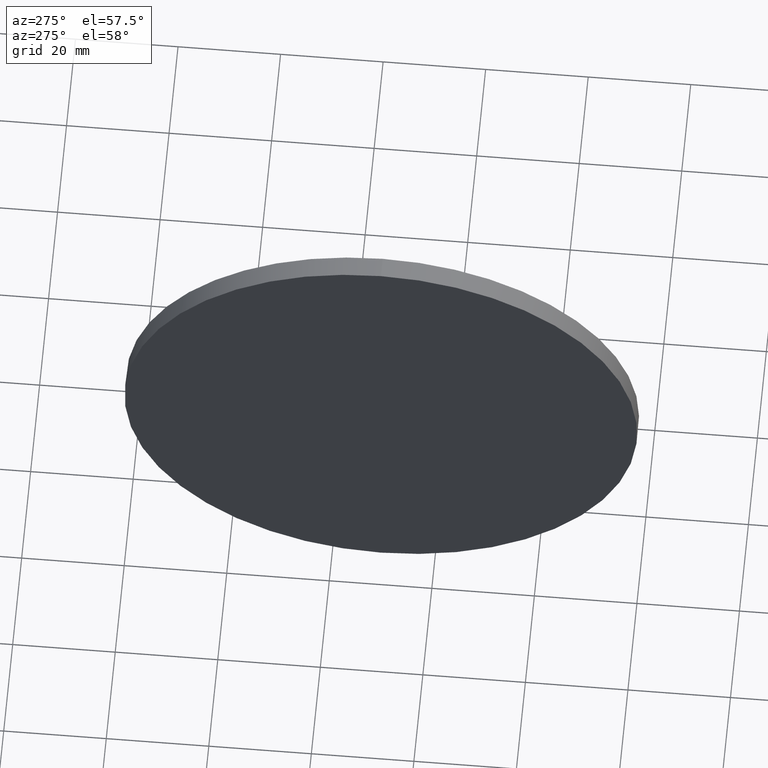
[diagram: clean part render]
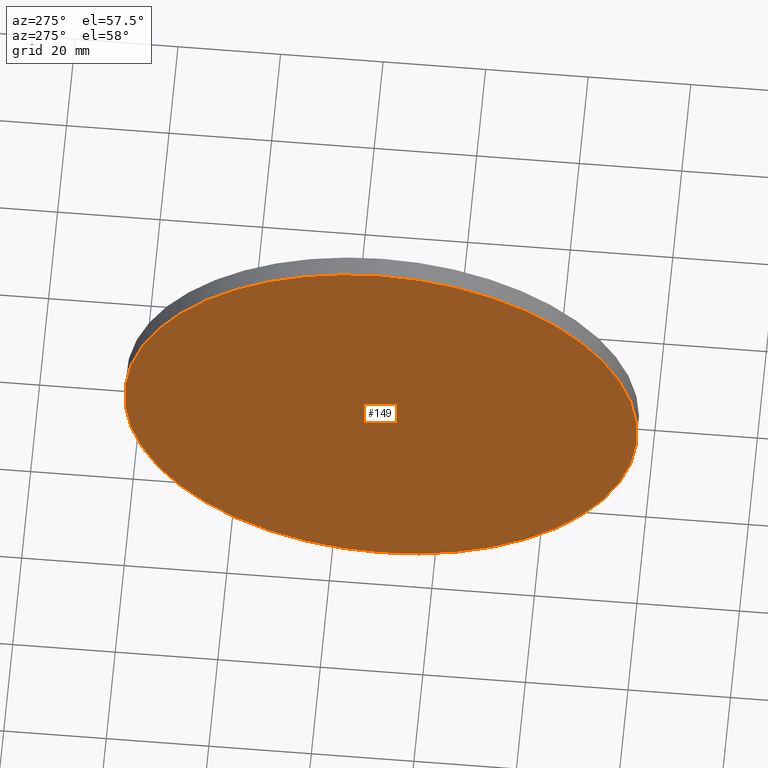
[diagram: same view with one face highlighted and labeled with its STEP entity id]
A machine part, auxiliary view. The second image highlights one B-rep face of the part: STEP entity #149.
In plain terms, the highlighted planar face has unit normal (1, 0, 0).
Its self-contained STEP definition (entity closure, byte-faithful):
#4 = DIRECTION ( 'NONE',  ( -1.000000000000000000, -0.0000000000000000000, -0.0000000000000000000 ) ) ;
#26 = CIRCLE ( 'NONE', #75, 50.00000000000001400 ) ;
#28 = CARTESIAN_POINT ( 'NONE',  ( 225.9713472661685500, 130.4671098528244200, 50.00000000000001400 ) ) ;
#41 = DIRECTION ( 'NONE',  ( -1.000000000000000000, -0.0000000000000000000, -0.0000000000000000000 ) ) ;
#42 = ORIENTED_EDGE ( 'NONE', *, *, #143, .T. ) ;
#56 = VERTEX_POINT ( 'NONE', #28 ) ;
#60 = DIRECTION ( 'NONE',  ( 0.0000000000000000000, 0.0000000000000000000, -1.000000000000000000 ) ) ;
#67 = EDGE_CURVE ( 'NONE', #74, #56, #96, .T. ) ;
#72 = DIRECTION ( 'NONE',  ( 0.0000000000000000000, 0.0000000000000000000, 1.000000000000000000 ) ) ;
#74 = VERTEX_POINT ( 'NONE', #148 ) ;
#75 = AXIS2_PLACEMENT_3D ( 'NONE', #93, #4, #123 ) ;
#93 = CARTESIAN_POINT ( 'NONE',  ( 225.9713472661685500, 130.4671098528244200, 0.0000000000000000000 ) ) ;
#96 = CIRCLE ( 'NONE', #107, 50.00000000000001400 ) ;
#100 = EDGE_LOOP ( 'NONE', ( #42, #103 ) ) ;
#103 = ORIENTED_EDGE ( 'NONE', *, *, #67, .T. ) ;
#107 = AXIS2_PLACEMENT_3D ( 'NONE', #137, #41, #72 ) ;
#112 = CARTESIAN_POINT ( 'NONE',  ( 225.9713472661685500, 130.4671098528244200, 0.0000000000000000000 ) ) ;
#123 = DIRECTION ( 'NONE',  ( 0.0000000000000000000, 0.0000000000000000000, 1.000000000000000000 ) ) ;
#137 = CARTESIAN_POINT ( 'NONE',  ( 225.9713472661685500, 130.4671098528244200, 0.0000000000000000000 ) ) ;
#138 = DIRECTION ( 'NONE',  ( 1.000000000000000000, 0.0000000000000000000, 0.0000000000000000000 ) ) ;
#140 = PLANE ( 'NONE',  #141 ) ;
#141 = AXIS2_PLACEMENT_3D ( 'NONE', #112, #138, #60 ) ;
#143 = EDGE_CURVE ( 'NONE', #56, #74, #26, .T. ) ;
#148 = CARTESIAN_POINT ( 'NONE',  ( 225.9713472661685500, 130.4671098528244200, -50.00000000000001400 ) ) ;
#149 = ADVANCED_FACE ( 'NONE', ( #182 ), #140, .F. ) ;
#182 = FACE_OUTER_BOUND ( 'NONE', #100, .T. ) ;